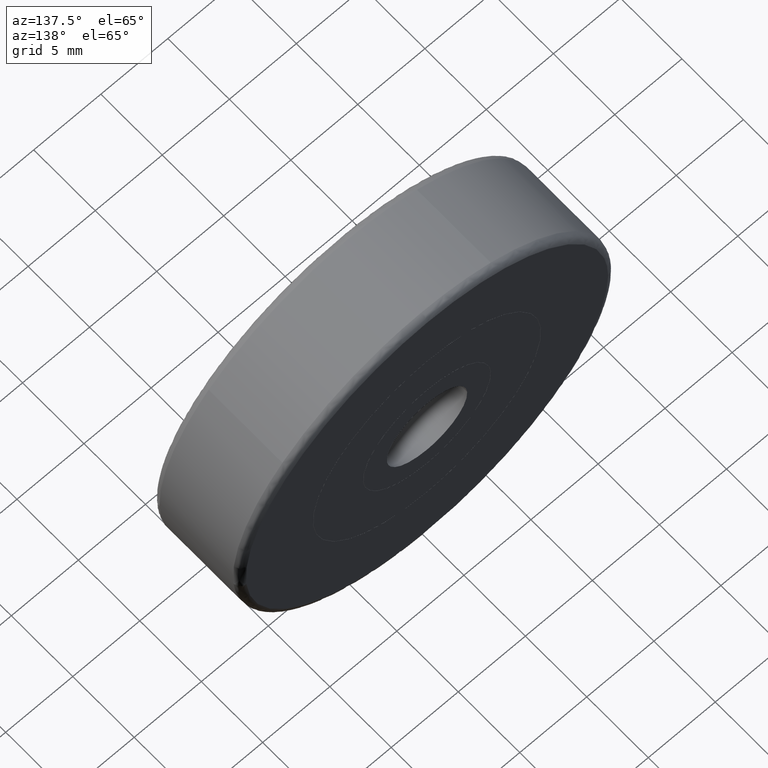
[diagram: clean part render]
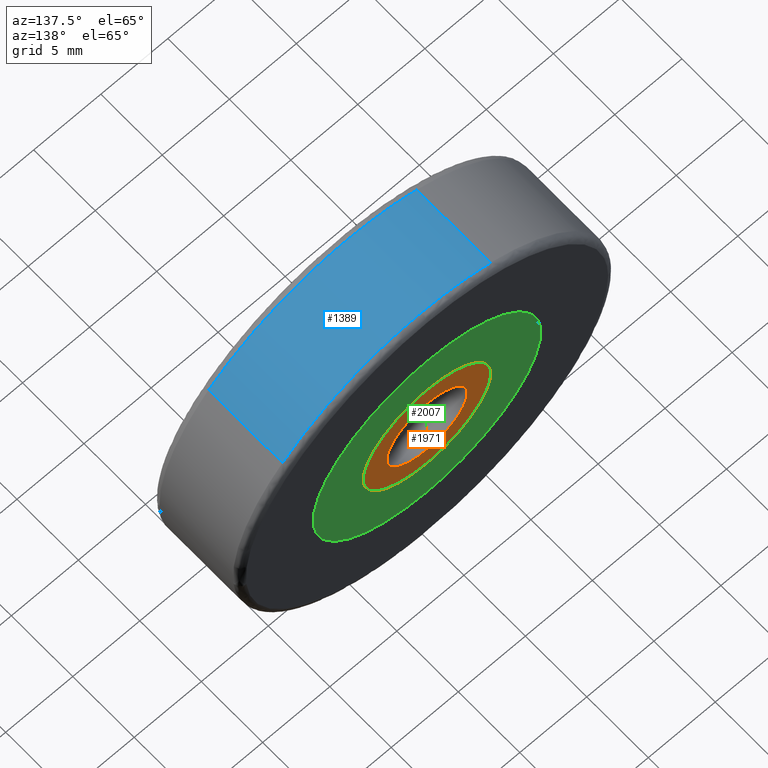
[diagram: same view with three faces highlighted in distinct colors, each labeled with its STEP entity id]
A machine part, auxiliary view with three faces highlighted in distinct colors.
Their STEP definitions:

[orange] entity #1971 — the highlighted face is a freeform B-spline surface patch.
#642=CARTESIAN_POINT('',(4.735357335230625,7.0,-0.372680704729271));
#643=VERTEX_POINT('',#642);
#649=CARTESIAN_POINT('',(0.0,7.0,4.750000000000000));
#650=VERTEX_POINT('',#649);
#651=CARTESIAN_POINT('',(4.735357335230625,7.0,-0.372680704729271));
#652=CARTESIAN_POINT('',(4.750000000000000,7.0,-0.186628008308539));
#653=CARTESIAN_POINT('',(4.750000000000000,7.0,0.0));
#654=CARTESIAN_POINT('',(4.750000000000000,6.999999999999999,4.750000000000000));
#655=CARTESIAN_POINT('',(0.0,7.0,4.750000000000000));
#663=(BOUNDED_CURVE()B_SPLINE_CURVE(2,(#651,#652,#653,#654,#655),.UNSPECIFIED.,.F.,.U.)B_SPLINE_CURVE_WITH_KNOTS((3,2,3),(0.736331300631174,0.750000000000000,1.0),.UNSPECIFIED.)CURVE()GEOMETRIC_REPRESENTATION_ITEM()RATIONAL_B_SPLINE_CURVE((0.969723356168490,0.983986122579484,1.0,0.707106781186548,1.0))REPRESENTATION_ITEM(''));
#664=EDGE_CURVE('',#643,#650,#663,.T.);
#666=CARTESIAN_POINT('',(-4.735357335230624,7.0,0.372680704729272));
#667=VERTEX_POINT('',#666);
#668=CARTESIAN_POINT('',(0.0,7.0,4.750000000000000));
#669=CARTESIAN_POINT('',(-4.390854835335544,7.000000000000001,4.750000000000000));
#670=CARTESIAN_POINT('',(-4.735357335230624,7.0,0.372680704729272));
#678=(BOUNDED_CURVE()B_SPLINE_CURVE(2,(#668,#669,#670),.UNSPECIFIED.,.F.,.U.)B_SPLINE_CURVE_WITH_KNOTS((3,3),(0.0,0.236331300631174),.UNSPECIFIED.)CURVE()GEOMETRIC_REPRESENTATION_ITEM()RATIONAL_B_SPLINE_CURVE((1.0,0.723120658607064,0.969723356168490))REPRESENTATION_ITEM(''));
#679=EDGE_CURVE('',#650,#667,#678,.T.);
#725=CARTESIAN_POINT('',(0.0,7.0,-4.750000000000000));
#726=VERTEX_POINT('',#725);
#727=CARTESIAN_POINT('',(-4.735357335230624,7.0,0.372680704729272));
#728=CARTESIAN_POINT('',(-4.750000000000000,7.0,0.186628008308540));
#729=CARTESIAN_POINT('',(-4.750000000000000,7.0,0.0));
#730=CARTESIAN_POINT('',(-4.750000000000000,6.999999999999999,-4.750000000000000));
#731=CARTESIAN_POINT('',(0.0,7.0,-4.750000000000000));
#739=(BOUNDED_CURVE()B_SPLINE_CURVE(2,(#727,#728,#729,#730,#731),.UNSPECIFIED.,.F.,.U.)B_SPLINE_CURVE_WITH_KNOTS((3,2,3),(0.236331300631174,0.250000000000000,0.500000000000000),.UNSPECIFIED.)CURVE()GEOMETRIC_REPRESENTATION_ITEM()RATIONAL_B_SPLINE_CURVE((0.969723356168490,0.983986122579484,1.0,0.707106781186548,1.0))REPRESENTATION_ITEM(''));
#740=EDGE_CURVE('',#667,#726,#739,.T.);
#742=CARTESIAN_POINT('',(0.0,7.0,-4.750000000000000));
#743=CARTESIAN_POINT('',(4.390854835335556,6.999999999999999,-4.750000000000000));
#744=CARTESIAN_POINT('',(4.735357335230625,7.0,-0.372680704729271));
#752=(BOUNDED_CURVE()B_SPLINE_CURVE(2,(#742,#743,#744),.UNSPECIFIED.,.F.,.U.)B_SPLINE_CURVE_WITH_KNOTS((3,3),(0.500000000000000,0.736331300631174),.UNSPECIFIED.)CURVE()GEOMETRIC_REPRESENTATION_ITEM()RATIONAL_B_SPLINE_CURVE((1.0,0.723120658607063,0.969723356168491))REPRESENTATION_ITEM(''));
#753=EDGE_CURVE('',#726,#643,#752,.T.);
#1412=CARTESIAN_POINT('',(2.979028579088921,7.0,-0.354102703987760));
#1413=VERTEX_POINT('',#1412);
#1414=CARTESIAN_POINT('',(0.0,7.0,3.0));
#1415=VERTEX_POINT('',#1414);
#1416=CARTESIAN_POINT('',(2.979028579088921,7.0,-0.354102703987760));
#1417=CARTESIAN_POINT('',(3.000000000000001,7.000000000000001,-0.177672358973400));
#1418=CARTESIAN_POINT('',(3.0,7.0,-1.642359E-016));
#1419=CARTESIAN_POINT('',(3.0,6.999999999999999,3.0));
#1420=CARTESIAN_POINT('',(0.0,7.0,3.0));
#1428=(BOUNDED_CURVE()B_SPLINE_CURVE(2,(#1416,#1417,#1418,#1419,#1420),.UNSPECIFIED.,.F.,.U.)B_SPLINE_CURVE_WITH_KNOTS((3,2,3),(0.229562473513660,0.250000000000000,0.500000000000000),.UNSPECIFIED.)CURVE()GEOMETRIC_REPRESENTATION_ITEM()RATIONAL_B_SPLINE_CURVE((0.956026754183997,0.976055948331323,1.0,0.707106781186548,1.0))REPRESENTATION_ITEM(''));
#1429=EDGE_CURVE('',#1413,#1415,#1428,.T.);
#1470=CARTESIAN_POINT('',(-2.994404395264292,7.0,0.183145618625961));
#1471=VERTEX_POINT('',#1470);
#1477=CARTESIAN_POINT('',(0.0,7.0,3.0));
#1478=CARTESIAN_POINT('',(-2.822118200676678,7.0,3.000000000000000));
#1479=CARTESIAN_POINT('',(-2.994404395264293,7.0,0.183145618625961));
#1487=(BOUNDED_CURVE()B_SPLINE_CURVE(2,(#1477,#1478,#1479),.UNSPECIFIED.,.F.,.U.)B_SPLINE_CURVE_WITH_KNOTS((3,3),(0.500000000000000,0.739332962239502),.UNSPECIFIED.)CURVE()GEOMETRIC_REPRESENTATION_ITEM()RATIONAL_B_SPLINE_CURVE((1.0,0.719603993286055,0.976072041667917))REPRESENTATION_ITEM(''));
#1488=EDGE_CURVE('',#1415,#1471,#1487,.T.);
#1511=CARTESIAN_POINT('',(0.0,7.0,-3.0));
#1512=VERTEX_POINT('',#1511);
#1513=CARTESIAN_POINT('',(0.0,7.0,-3.0));
#1514=CARTESIAN_POINT('',(2.664523577822605,6.999999999999998,-3.0));
#1515=CARTESIAN_POINT('',(2.979028579088921,7.0,-0.354102703987760));
#1523=(BOUNDED_CURVE()B_SPLINE_CURVE(2,(#1513,#1514,#1515),.UNSPECIFIED.,.F.,.U.)B_SPLINE_CURVE_WITH_KNOTS((3,3),(0.0,0.229562473513660),.UNSPECIFIED.)CURVE()GEOMETRIC_REPRESENTATION_ITEM()RATIONAL_B_SPLINE_CURVE((1.0,0.731050832855224,0.956026754183997))REPRESENTATION_ITEM(''));
#1524=EDGE_CURVE('',#1512,#1413,#1523,.T.);
#1526=CARTESIAN_POINT('',(-2.994404395264292,7.0,0.183145618625961));
#1527=CARTESIAN_POINT('',(-3.000000000000001,7.0,0.091658289917217));
#1528=CARTESIAN_POINT('',(-3.0,7.0,-1.642359E-016));
#1529=CARTESIAN_POINT('',(-3.0,6.999999999999999,-3.0));
#1530=CARTESIAN_POINT('',(0.0,7.0,-3.0));
#1538=(BOUNDED_CURVE()B_SPLINE_CURVE(2,(#1526,#1527,#1528,#1529,#1530),.UNSPECIFIED.,.F.,.U.)B_SPLINE_CURVE_WITH_KNOTS((3,2,3),(0.739332962239503,0.750000000000000,1.0),.UNSPECIFIED.)CURVE()GEOMETRIC_REPRESENTATION_ITEM()RATIONAL_B_SPLINE_CURVE((0.976072041667919,0.987502787900494,1.0,0.707106781186548,1.0))REPRESENTATION_ITEM(''));
#1539=EDGE_CURVE('',#1471,#1512,#1538,.T.);
#1954=CARTESIAN_POINT('',(-5.223075342990141,7.0,5.224524981587156));
#1955=CARTESIAN_POINT('',(-5.223075342990141,7.0,-5.224525236397013));
#1956=CARTESIAN_POINT('',(5.223075342990141,7.0,5.224524981587156));
#1957=CARTESIAN_POINT('',(5.223075342990141,7.0,-5.224525236397013));
#1958=B_SPLINE_SURFACE_WITH_KNOTS('',1,1,((#1954,#1956),(#1955,#1957)),.UNSPECIFIED.,.F.,.F.,.U.,(2,2),(2,2),(0.0,10.449050217984171),(0.0,10.446150685980280),.UNSPECIFIED.);
#1959=ORIENTED_EDGE('',*,*,#664,.F.);
#1960=ORIENTED_EDGE('',*,*,#753,.F.);
#1961=ORIENTED_EDGE('',*,*,#740,.F.);
#1962=ORIENTED_EDGE('',*,*,#679,.F.);
#1963=EDGE_LOOP('',(#1959,#1960,#1961,#1962));
#1964=FACE_OUTER_BOUND('',#1963,.T.);
#1965=ORIENTED_EDGE('',*,*,#1488,.T.);
#1966=ORIENTED_EDGE('',*,*,#1539,.T.);
#1967=ORIENTED_EDGE('',*,*,#1524,.T.);
#1968=ORIENTED_EDGE('',*,*,#1429,.T.);
#1969=EDGE_LOOP('',(#1965,#1966,#1967,#1968));
#1970=FACE_BOUND('',#1969,.T.);
#1971=ADVANCED_FACE('',(#1964,#1970),#1958,.F.);

[blue] entity #1389 — the highlighted face is a freeform B-spline surface patch.
#1170=CARTESIAN_POINT('',(-5.201544316576030,0.499999999979195,12.997843541242920));
#1171=VERTEX_POINT('',#1170);
#1187=CARTESIAN_POINT('',(-5.201544378628663,6.500000000013052,12.997843516410160));
#1188=VERTEX_POINT('',#1187);
#1189=CARTESIAN_POINT('',(-5.201544378628663,6.500000000013052,12.997843516410160));
#1190=CARTESIAN_POINT('',(-5.201544316576030,0.499999999979195,12.997843541242920));
#1191=QUASI_UNIFORM_CURVE('',1,(#1189,#1190),.UNSPECIFIED.,.F.,.U.);
#1192=EDGE_CURVE('',#1188,#1171,#1191,.T.);
#1241=CARTESIAN_POINT('',(10.321883223462130,6.500000000000000,9.458262352103080));
#1242=VERTEX_POINT('',#1241);
#1258=CARTESIAN_POINT('',(10.321883229809581,0.500000000000006,9.458262345176046));
#1259=VERTEX_POINT('',#1258);
#1260=CARTESIAN_POINT('',(10.321883223462130,6.500000000000000,9.458262352103080));
#1261=CARTESIAN_POINT('',(10.321883229809581,0.500000000000006,9.458262345176046));
#1262=QUASI_UNIFORM_CURVE('',1,(#1260,#1261),.UNSPECIFIED.,.F.,.U.);
#1263=EDGE_CURVE('',#1242,#1259,#1262,.T.);
#1315=CARTESIAN_POINT('',(10.321882715341729,6.650000000191609,9.458262906619240));
#1316=CARTESIAN_POINT('',(3.783583442400635,6.650000000191609,16.593564485714897));
#1317=CARTESIAN_POINT('',(-5.201551801718360,6.650000000191610,12.997840545799923));
#1318=CARTESIAN_POINT('',(10.321882715341729,0.346249999705311,9.458262906619240));
#1319=CARTESIAN_POINT('',(3.783583442400635,0.346249999705311,16.593564485714897));
#1320=CARTESIAN_POINT('',(-5.201551801718360,0.346249999705311,12.997840545799923));
#1328=(BOUNDED_SURFACE()B_SPLINE_SURFACE(2,1,((#1315,#1318),(#1316,#1319),(#1317,#1320)),.UNSPECIFIED.,.F.,.F.,.U.)B_SPLINE_SURFACE_WITH_KNOTS((3,3),(2,2),(0.0,17.456414494357180),(0.0,6.303750000486298),.UNSPECIFIED.)GEOMETRIC_REPRESENTATION_ITEM()RATIONAL_B_SPLINE_SURFACE(((1.0,1.0),(0.777401153701776,0.777401153701776),(0.893152553776853,0.893152553776853)))REPRESENTATION_ITEM('')SURFACE());
#1329=CARTESIAN_POINT('',(0.0,0.500000000000000,14.0));
#1330=VERTEX_POINT('',#1329);
#1331=CARTESIAN_POINT('',(0.0,0.500000000000000,14.0));
#1332=CARTESIAN_POINT('',(-2.697312484266589,0.500000000000000,13.999999999999998));
#1333=CARTESIAN_POINT('',(-5.201544316576030,0.499999999979195,12.997843541242920));
#1341=(BOUNDED_CURVE()B_SPLINE_CURVE(2,(#1331,#1332,#1333),.UNSPECIFIED.,.F.,.U.)B_SPLINE_CURVE_WITH_KNOTS((3,3),(0.500000000000000,0.563083108910150),.UNSPECIFIED.)CURVE()GEOMETRIC_REPRESENTATION_ITEM()RATIONAL_B_SPLINE_CURVE((1.0,0.926093540714186,0.889485075190697))REPRESENTATION_ITEM(''));
#1342=EDGE_CURVE('',#1330,#1171,#1341,.T.);
#1343=ORIENTED_EDGE('',*,*,#1342,.F.);
#1344=CARTESIAN_POINT('',(10.321883229809579,0.500000000000006,9.458262345176046));
#1345=CARTESIAN_POINT('',(6.160148341429627,0.500000000000000,13.999999999999998));
#1346=CARTESIAN_POINT('',(0.0,0.500000000000000,14.0));
#1354=(BOUNDED_CURVE()B_SPLINE_CURVE(2,(#1344,#1345,#1346),.UNSPECIFIED.,.F.,.U.)B_SPLINE_CURVE_WITH_KNOTS((3,3),(0.368415192661570,0.500000000000000),.UNSPECIFIED.)CURVE()GEOMETRIC_REPRESENTATION_ITEM()RATIONAL_B_SPLINE_CURVE((0.853959782865036,0.845838808926797,1.0))REPRESENTATION_ITEM(''));
#1355=EDGE_CURVE('',#1259,#1330,#1354,.T.);
#1356=ORIENTED_EDGE('',*,*,#1355,.F.);
#1357=ORIENTED_EDGE('',*,*,#1263,.F.);
#1358=CARTESIAN_POINT('',(0.0,6.500000000000000,14.0));
#1359=VERTEX_POINT('',#1358);
#1360=CARTESIAN_POINT('',(10.321883223462125,6.500000000000000,9.458262352103082));
#1361=CARTESIAN_POINT('',(6.160148330215164,6.500000000000000,14.000000000000004));
#1362=CARTESIAN_POINT('',(0.0,6.500000000000000,14.0));
#1370=(BOUNDED_CURVE()B_SPLINE_CURVE(2,(#1360,#1361,#1362),.UNSPECIFIED.,.F.,.U.)B_SPLINE_CURVE_WITH_KNOTS((3,3),(0.368415192864190,0.500000000000000),.UNSPECIFIED.)CURVE()GEOMETRIC_REPRESENTATION_ITEM()RATIONAL_B_SPLINE_CURVE((0.853959782840026,0.845838809164181,1.0))REPRESENTATION_ITEM(''));
#1371=EDGE_CURVE('',#1242,#1359,#1370,.T.);
#1372=ORIENTED_EDGE('',*,*,#1371,.T.);
#1373=CARTESIAN_POINT('',(0.0,6.500000000000000,14.0));
#1374=CARTESIAN_POINT('',(-2.697312518925516,6.500000000000000,13.999999999999998));
#1375=CARTESIAN_POINT('',(-5.201544378628664,6.500000000013052,12.997843516410164));
#1383=(BOUNDED_CURVE()B_SPLINE_CURVE(2,(#1373,#1374,#1375),.UNSPECIFIED.,.F.,.U.)B_SPLINE_CURVE_WITH_KNOTS((3,3),(0.500000000000000,0.563083109660825),.UNSPECIFIED.)CURVE()GEOMETRIC_REPRESENTATION_ITEM()RATIONAL_B_SPLINE_CURVE((1.0,0.926093539834716,0.889485074319432))REPRESENTATION_ITEM(''));
#1384=EDGE_CURVE('',#1359,#1188,#1383,.T.);
#1385=ORIENTED_EDGE('',*,*,#1384,.T.);
#1386=ORIENTED_EDGE('',*,*,#1192,.T.);
#1387=EDGE_LOOP('',(#1343,#1356,#1357,#1372,#1385,#1386));
#1388=FACE_OUTER_BOUND('',#1387,.T.);
#1389=ADVANCED_FACE('',(#1388),#1328,.T.);

[green] entity #2007 — the highlighted face is a freeform B-spline surface patch.
#278=CARTESIAN_POINT('',(8.463828881878911,7.0,-0.666108593390349));
#279=VERTEX_POINT('',#278);
#285=CARTESIAN_POINT('',(0.0,7.0,8.489999999999998));
#286=VERTEX_POINT('',#285);
#287=CARTESIAN_POINT('',(8.463828881878911,7.0,-0.666108593390349));
#288=CARTESIAN_POINT('',(8.489999999999997,7.0,-0.333568422642883));
#289=CARTESIAN_POINT('',(8.489999999999998,7.0,0.0));
#290=CARTESIAN_POINT('',(8.489999999999998,6.999999999999999,8.489999999999998));
#291=CARTESIAN_POINT('',(0.0,7.0,8.489999999999998));
#299=(BOUNDED_CURVE()B_SPLINE_CURVE(2,(#287,#288,#289,#290,#291),.UNSPECIFIED.,.F.,.U.)B_SPLINE_CURVE_WITH_KNOTS((3,2,3),(0.736331485536388,0.750000000000000,1.0),.UNSPECIFIED.)CURVE()GEOMETRIC_REPRESENTATION_ITEM()RATIONAL_B_SPLINE_CURVE((0.969723742051886,0.983986339209417,1.0,0.707106781186548,1.0))REPRESENTATION_ITEM(''));
#300=EDGE_CURVE('',#279,#286,#299,.T.);
#302=CARTESIAN_POINT('',(-8.463828881878911,7.0,0.666108593390349));
#303=VERTEX_POINT('',#302);
#304=CARTESIAN_POINT('',(0.0,7.0,8.489999999999998));
#305=CARTESIAN_POINT('',(-7.848083765527183,7.000000000000001,8.489999999999998));
#306=CARTESIAN_POINT('',(-8.463828881878913,7.0,0.666108593390349));
#314=(BOUNDED_CURVE()B_SPLINE_CURVE(2,(#304,#305,#306),.UNSPECIFIED.,.F.,.U.)B_SPLINE_CURVE_WITH_KNOTS((3,3),(0.0,0.236331485536388),.UNSPECIFIED.)CURVE()GEOMETRIC_REPRESENTATION_ITEM()RATIONAL_B_SPLINE_CURVE((1.0,0.723120441977130,0.969723742051886))REPRESENTATION_ITEM(''));
#315=EDGE_CURVE('',#286,#303,#314,.T.);
#361=CARTESIAN_POINT('',(0.0,7.0,-8.489999999999998));
#362=VERTEX_POINT('',#361);
#363=CARTESIAN_POINT('',(-8.463828881878913,7.0,0.666108593390349));
#364=CARTESIAN_POINT('',(-8.489999999999997,7.0,0.333568422642883));
#365=CARTESIAN_POINT('',(-8.489999999999998,7.0,0.0));
#366=CARTESIAN_POINT('',(-8.489999999999998,6.999999999999999,-8.489999999999998));
#367=CARTESIAN_POINT('',(0.0,7.0,-8.489999999999998));
#375=(BOUNDED_CURVE()B_SPLINE_CURVE(2,(#363,#364,#365,#366,#367),.UNSPECIFIED.,.F.,.U.)B_SPLINE_CURVE_WITH_KNOTS((3,2,3),(0.236331485536388,0.250000000000000,0.500000000000000),.UNSPECIFIED.)CURVE()GEOMETRIC_REPRESENTATION_ITEM()RATIONAL_B_SPLINE_CURVE((0.969723742051886,0.983986339209417,1.0,0.707106781186548,1.0))REPRESENTATION_ITEM(''));
#376=EDGE_CURVE('',#303,#362,#375,.T.);
#378=CARTESIAN_POINT('',(0.0,7.0,-8.489999999999998));
#379=CARTESIAN_POINT('',(7.848083765527185,7.000000000000001,-8.489999999999998));
#380=CARTESIAN_POINT('',(8.463828881878911,7.0,-0.666108593390349));
#388=(BOUNDED_CURVE()B_SPLINE_CURVE(2,(#378,#379,#380),.UNSPECIFIED.,.F.,.U.)B_SPLINE_CURVE_WITH_KNOTS((3,3),(0.500000000000000,0.736331485536388),.UNSPECIFIED.)CURVE()GEOMETRIC_REPRESENTATION_ITEM()RATIONAL_B_SPLINE_CURVE((1.0,0.723120441977130,0.969723742051886))REPRESENTATION_ITEM(''));
#389=EDGE_CURVE('',#362,#279,#388,.T.);
#443=CARTESIAN_POINT('',(-4.745326508567915,7.0,0.373465295687087));
#444=VERTEX_POINT('',#443);
#450=CARTESIAN_POINT('',(0.0,7.0,4.760000000000001));
#451=VERTEX_POINT('',#450);
#452=CARTESIAN_POINT('',(0.0,7.0,4.760000000000001));
#453=CARTESIAN_POINT('',(-4.400098740251128,6.999999999999999,4.760000000000002));
#454=CARTESIAN_POINT('',(-4.745326508567915,7.000000000000001,0.373465295687087));
#462=(BOUNDED_CURVE()B_SPLINE_CURVE(2,(#452,#453,#454),.UNSPECIFIED.,.F.,.U.)B_SPLINE_CURVE_WITH_KNOTS((3,3),(0.0,0.236331300631138),.UNSPECIFIED.)CURVE()GEOMETRIC_REPRESENTATION_ITEM()RATIONAL_B_SPLINE_CURVE((1.0,0.723120658607105,0.969723356168416))REPRESENTATION_ITEM(''));
#463=EDGE_CURVE('',#451,#444,#462,.T.);
#465=CARTESIAN_POINT('',(4.745326508567915,7.0,-0.373465295687088));
#466=VERTEX_POINT('',#465);
#467=CARTESIAN_POINT('',(4.745326508567915,7.000000000000001,-0.373465295687088));
#468=CARTESIAN_POINT('',(4.760000000000001,7.0,-0.187020909379157));
#469=CARTESIAN_POINT('',(4.760000000000001,7.0,0.0));
#470=CARTESIAN_POINT('',(4.760000000000001,6.999999999999999,4.760000000000001));
#471=CARTESIAN_POINT('',(0.0,7.0,4.760000000000001));
#479=(BOUNDED_CURVE()B_SPLINE_CURVE(2,(#467,#468,#469,#470,#471),.UNSPECIFIED.,.F.,.U.)B_SPLINE_CURVE_WITH_KNOTS((3,2,3),(0.736331300631138,0.750000000000000,1.0),.UNSPECIFIED.)CURVE()GEOMETRIC_REPRESENTATION_ITEM()RATIONAL_B_SPLINE_CURVE((0.969723356168416,0.983986122579443,1.0,0.707106781186548,1.0))REPRESENTATION_ITEM(''));
#480=EDGE_CURVE('',#466,#451,#479,.T.);
#556=CARTESIAN_POINT('',(0.0,7.0,-4.760000000000001));
#557=VERTEX_POINT('',#556);
#558=CARTESIAN_POINT('',(0.0,7.0,-4.760000000000001));
#559=CARTESIAN_POINT('',(4.400098740251139,6.999999999999999,-4.760000000000000));
#560=CARTESIAN_POINT('',(4.745326508567916,6.999999999999999,-0.373465295687088));
#568=(BOUNDED_CURVE()B_SPLINE_CURVE(2,(#558,#559,#560),.UNSPECIFIED.,.F.,.U.)B_SPLINE_CURVE_WITH_KNOTS((3,3),(0.500000000000000,0.736331300631139),.UNSPECIFIED.)CURVE()GEOMETRIC_REPRESENTATION_ITEM()RATIONAL_B_SPLINE_CURVE((1.0,0.723120658607105,0.969723356168417))REPRESENTATION_ITEM(''));
#569=EDGE_CURVE('',#557,#466,#568,.T.);
#571=CARTESIAN_POINT('',(-4.745326508567915,7.0,0.373465295687087));
#572=CARTESIAN_POINT('',(-4.760000000000001,7.0,0.187020909379156));
#573=CARTESIAN_POINT('',(-4.760000000000001,7.0,0.0));
#574=CARTESIAN_POINT('',(-4.760000000000001,6.999999999999999,-4.760000000000001));
#575=CARTESIAN_POINT('',(0.0,7.0,-4.760000000000001));
#583=(BOUNDED_CURVE()B_SPLINE_CURVE(2,(#571,#572,#573,#574,#575),.UNSPECIFIED.,.F.,.U.)B_SPLINE_CURVE_WITH_KNOTS((3,2,3),(0.236331300631138,0.250000000000000,0.500000000000000),.UNSPECIFIED.)CURVE()GEOMETRIC_REPRESENTATION_ITEM()RATIONAL_B_SPLINE_CURVE((0.969723356168416,0.983986122579443,1.0,0.707106781186548,1.0))REPRESENTATION_ITEM(''));
#584=EDGE_CURVE('',#444,#557,#583,.T.);
#1990=CARTESIAN_POINT('',(-9.335558752402113,7.0,9.338150747028886));
#1991=CARTESIAN_POINT('',(-9.335558752402113,7.0,-9.338150139776763));
#1992=CARTESIAN_POINT('',(9.335558600589087,7.0,9.338150747028886));
#1993=CARTESIAN_POINT('',(9.335558600589087,7.0,-9.338150139776763));
#1994=B_SPLINE_SURFACE_WITH_KNOTS('',1,1,((#1990,#1992),(#1991,#1993)),.UNSPECIFIED.,.F.,.F.,.U.,(2,2),(2,2),(0.0,18.676300886805649),(0.0,18.671117352991200),.UNSPECIFIED.);
#1995=ORIENTED_EDGE('',*,*,#300,.F.);
#1996=ORIENTED_EDGE('',*,*,#389,.F.);
#1997=ORIENTED_EDGE('',*,*,#376,.F.);
#1998=ORIENTED_EDGE('',*,*,#315,.F.);
#1999=EDGE_LOOP('',(#1995,#1996,#1997,#1998));
#2000=FACE_OUTER_BOUND('',#1999,.T.);
#2001=ORIENTED_EDGE('',*,*,#569,.T.);
#2002=ORIENTED_EDGE('',*,*,#480,.T.);
#2003=ORIENTED_EDGE('',*,*,#463,.T.);
#2004=ORIENTED_EDGE('',*,*,#584,.T.);
#2005=EDGE_LOOP('',(#2001,#2002,#2003,#2004));
#2006=FACE_BOUND('',#2005,.T.);
#2007=ADVANCED_FACE('',(#2000,#2006),#1994,.F.);